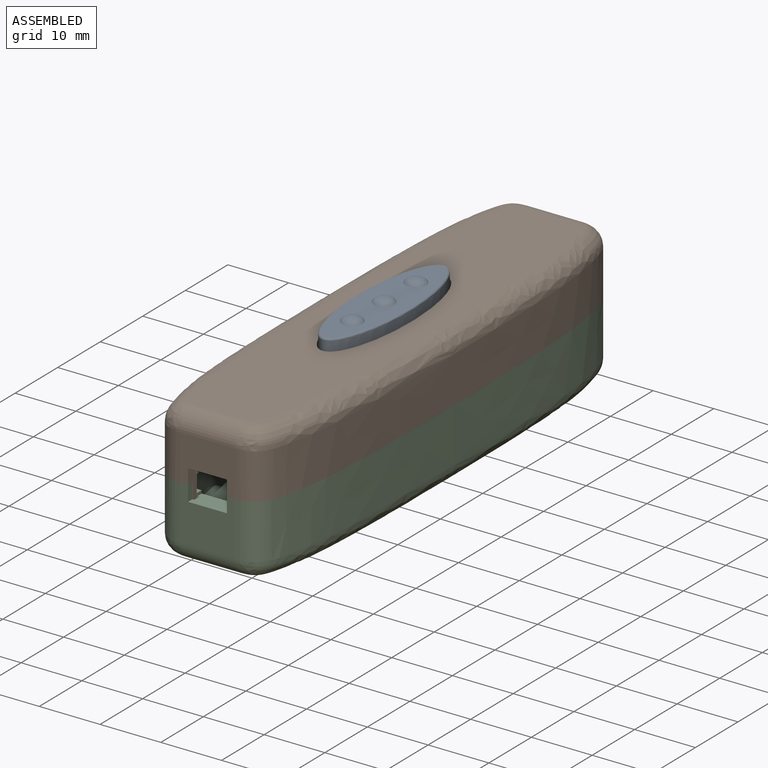
[diagram: assembled view]
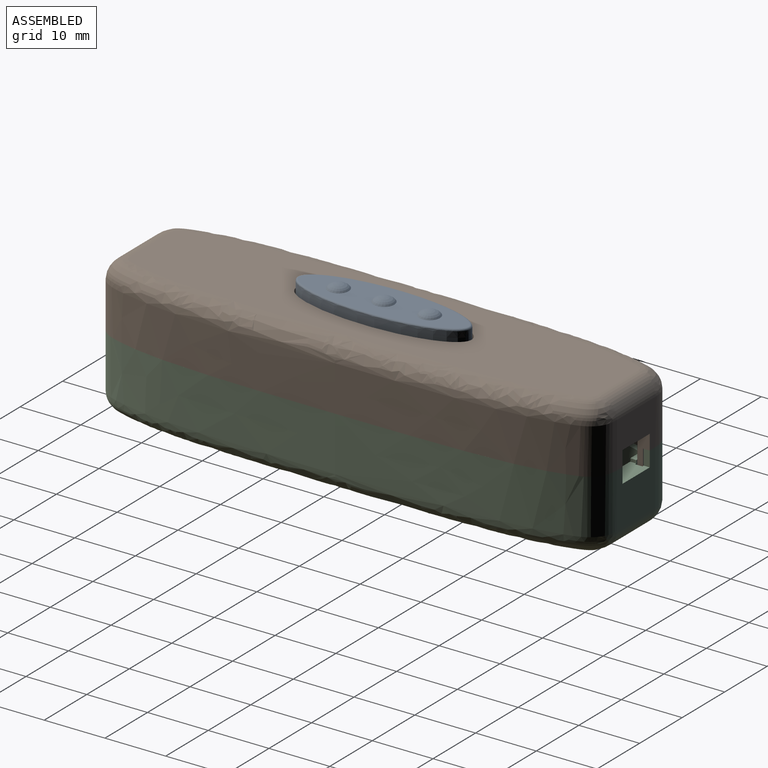
[diagram: assembled view, second angle]
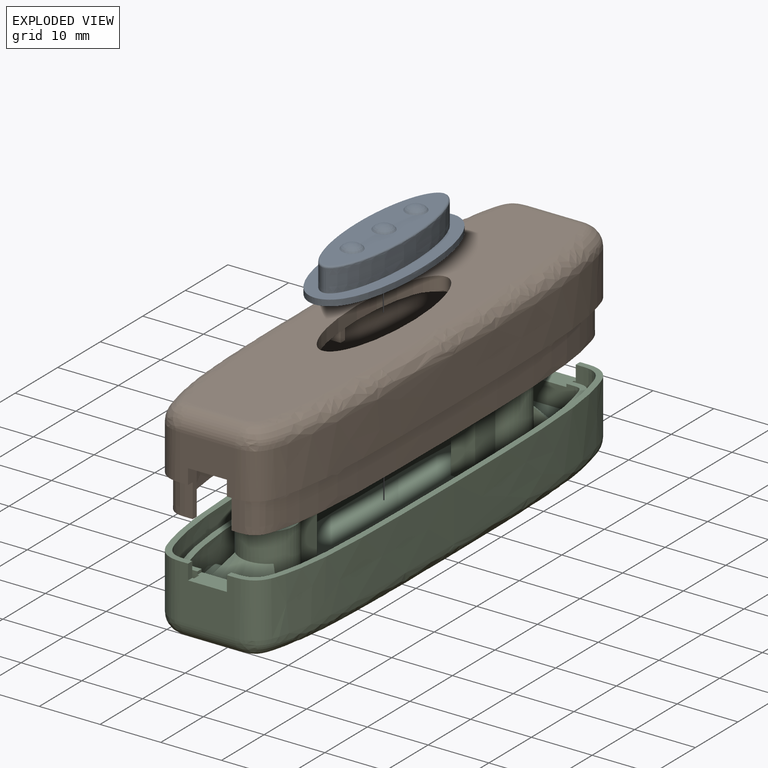
[diagram: exploded view]
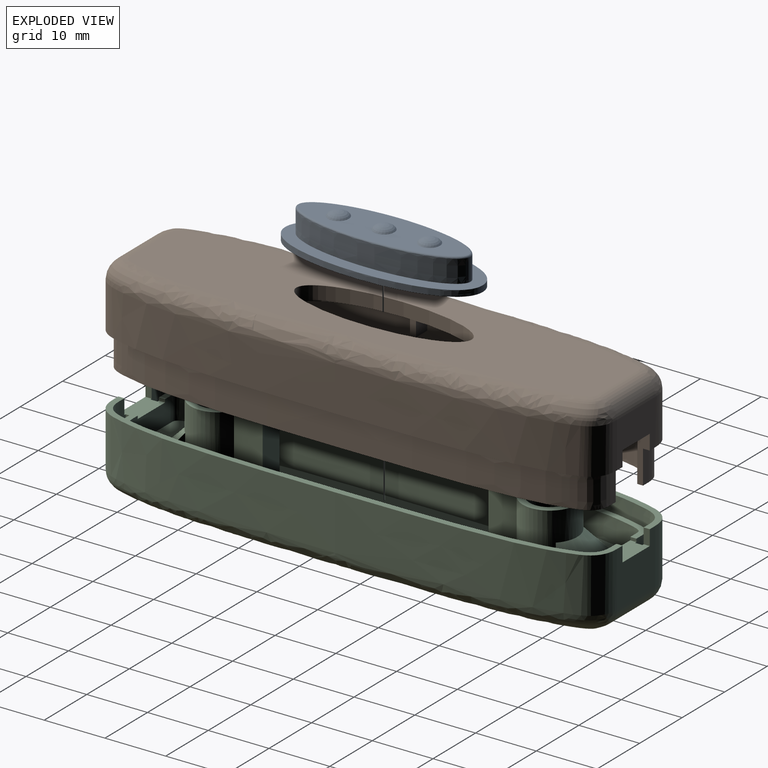
[diagram: exploded view, second angle]
ASSEMBLY  parts=3 mates=2
PART A: 18 faces, bbox 12.6x32.5x5.7 mm
  f0: plane 7.17x6.61mm, normal (0,0,-1), area 42.4mm2, adj f1,f2,f3,f12
  f1: extruded ~18.2x4mm, area 66mm2, adj f0,f2,f4,f7,f10,f11,f12,f13
  f2: plane 5.24x4mm, normal (0,1,0), area 20.9mm2, adj f0,f1,f3,f7
  f3: extruded ~18.2x4mm, area 66mm2, adj f0,f2,f4,f7,f10,f11,f12,f13
  f4: plane 5.24x4mm, normal (0,-1,0), area 20.9mm2, adj f1,f3,f7,f10
  f5: extruded ~32.5x12.6mm, area 74.7mm2, adj f6,f7
  f6: plane 32.52x12.62mm, normal (0,0,1), area 137.5mm2, adj f5,f8
  f7: plane 32.52x12.62mm, normal (0,0,-1), area 208.1mm2, adj f1,f2,f3,f4,f5
  f8: extruded ~28.5x8.6mm, area 230.9mm2, adj f6,f14
  f9: plane 27.9x8.01mm, normal (0,0,1), area 145.8mm2, adj f14,f15,f16,f17
  f10: plane 7.17x6.61mm, normal (0,0,-1), area 42.4mm2, adj f1,f3,f4,f11
  f11: plane 7.16x1.5mm, normal (0,1,0), area 10.7mm2, adj f1,f3,f10,f13
  f12: plane 7.16x1.5mm, normal (0,-1,0), area 10.7mm2, adj f0,f1,f3,f13
  f13: plane 7.3x5mm, normal (0,0,-1), area 36.3mm2, adj f1,f3,f11,f12
  f14: bspline ~28.5x8.61mm, area 29.1mm2, adj f8,f9
  f15: revolved ~3.4x3.4mm, area 11.1mm2, adj f9
  f16: revolved ~3.4x3.4mm, area 11.1mm2, adj f9
  f17: revolved ~3.4x3.4mm, area 11.1mm2, adj f9
PART B: 93 faces, bbox 23x83x16 mm
  f0: extruded ~39.45x12mm, area 485.8mm2, adj f6,f14,f16,f44,f47,f48,f70,f75
  f1: extruded ~39.45x12mm, area 485.8mm2, adj f8,f11,f12,f43,f45,f46,f60,f72
  f2: extruded ~28.9x9mm, area 140.2mm2, adj f3,f4
  f3: plane 35.92x16.01mm, normal (0,0,1), area 259.1mm2, adj f2,f5,f7,f9,f10,f11,f13,f14
  f4: plane 77x17mm, normal (0,0,-1), area 1025.1mm2, adj f2,f87,f88,f89,f90,f91,f92
  f5: extruded ~17.45x16mm, area 75.3mm2, adj f3,f6,f10,f14
  f6: plane 31.47x18.9mm, normal (0,0,1), area 249mm2, adj f0,f5,f10,f14,f26,f27,f28,f29
  f7: extruded ~17.45x16mm, area 75.3mm2, adj f3,f8,f11,f15
  f8: plane 31.47x18.9mm, normal (0,0,1), area 249mm2, adj f1,f7,f11,f15,f17,f18,f19,f20
  f9: plane 3.8x1mm, normal (1,0,0), area 3.8mm2, adj f3,f10,f11,f12
  f10: plane 3.8x2.65mm, normal (0,1,0), area 7.5mm2, adj f3,f5,f6,f9,f12,f43
  f11: plane 3.8x2.65mm, normal (0,-1,0), area 7.5mm2, adj f1,f3,f7,f8,f9,f12
  f12: plane 2.65x1mm, normal (0,0,1), area 2.6mm2, adj f1,f9,f10,f11,f43
  f13: plane 3.8x1mm, normal (-1,0,0), area 3.8mm2, adj f3,f14,f15,f16
  f14: plane 3.8x2.65mm, normal (0,1,0), area 7.5mm2, adj f0,f3,f5,f6,f13,f16
  f15: plane 3.8x2.65mm, normal (0,-1,0), area 7.5mm2, adj f3,f7,f8,f13,f16,f44
  f16: plane 2.65x1mm, normal (0,0,1), area 2.6mm2, adj f0,f13,f14,f15,f44
  f17: plane 10x2mm, normal (-1,0,0), area 20mm2, adj f8,f18,f25,f73
  f18: plane 2x1mm, normal (0,1,0), area 2mm2, adj f8,f17,f19,f25
  f19: plane 2x1mm, normal (1,0,0), area 2mm2, adj f8,f18,f20,f25
  f20: plane 4x2mm, normal (0,1,0), area 8mm2, adj f8,f19,f25,f37
  f21: plane 4x2mm, normal (0,1,0), area 8mm2, adj f8,f22,f25,f36
  f22: plane 2x1mm, normal (-1,0,0), area 2mm2, adj f8,f21,f23,f25
  f23: plane 2x1mm, normal (0,1,0), area 2mm2, adj f8,f22,f24,f25
  f24: plane 10x2mm, normal (1,0,0), area 20mm2, adj f8,f23,f25,f73
  f25: plane 11x10mm, normal (0,0,1), area 66.6mm2, adj f17,f18,f19,f20,f21,f22,f23,f24
  f26: plane 2x1mm, normal (0,-1,0), area 2mm2, adj f6,f27,f33,f34
  f27: plane 2x1mm, normal (-1,0,0), area 2mm2, adj f6,f26,f28,f34
  f28: plane 4x2mm, normal (0,-1,0), area 8mm2, adj f6,f27,f34,f40
  f29: plane 4x2mm, normal (0,-1,0), area 8mm2, adj f6,f30,f34,f41
  f30: plane 2x1mm, normal (1,0,0), area 2mm2, adj f6,f29,f31,f34
  f31: plane 2x1mm, normal (0,-1,0), area 2mm2, adj f6,f30,f32,f34
  f32: plane 10x2mm, normal (-1,0,0), area 20mm2, adj f6,f31,f34,f76
  f33: plane 10x2mm, normal (1,0,0), area 20mm2, adj f6,f26,f34,f76
  f34: plane 11x10mm, normal (0,0,1), area 66.6mm2, adj f26,f27,f28,f29,f30,f31,f32,f33
  f35: plane 4x1mm, normal (0,1,0), area 4mm2, adj f8,f36,f37,f38
  f36: plane 4x3.29mm, normal (1,0,0), area 10.6mm2, adj f8,f21,f25,f35,f38,f80
  f37: plane 4x3.29mm, normal (-1,0,0), area 10.6mm2, adj f8,f20,f25,f35,f38,f80
  f38: plane 3.29x1mm, normal (0,0,1), area 3.3mm2, adj f35,f36,f37,f80
  f39: plane 4x1mm, normal (0,-1,0), area 4mm2, adj f6,f40,f41,f42
  f40: plane 4x3.29mm, normal (1,0,0), area 10.6mm2, adj f6,f28,f34,f39,f42,f82
  f41: plane 4x3.29mm, normal (-1,0,0), area 10.6mm2, adj f6,f29,f34,f39,f42,f82
  f42: plane 3.29x1mm, normal (0,0,1), area 3.3mm2, adj f39,f40,f41,f82
  f43: extruded ~39.45x12mm, area 485.8mm2, adj f1,f6,f10,f12,f47,f48,f60,f75
  f44: extruded ~39.45x12mm, area 485.8mm2, adj f0,f8,f15,f16,f45,f46,f70,f72
  f45: plane 16.03x5.63mm, normal (0,0,1), area 81mm2, adj f1,f44,f46,f74
  f46: plane 12x9mm, normal (0,1,0), area 56.8mm2, adj f1,f44,f45,f54,f60,f63,f70,f78
  f47: plane 16.03x5.63mm, normal (0,0,1), area 81mm2, adj f0,f43,f48,f77
  f48: plane 12x9mm, normal (0,-1,0), area 56.8mm2, adj f0,f43,f47,f49,f60,f62,f70,f71
  f49: plane 8x2.05mm, normal (1,0,0), area 10.4mm2, adj f48,f50,f55,f56,f60,f71
  f50: plane 9x7.5mm, normal (0,1,0), area 51.5mm2, adj f49,f51,f55,f61,f62,f65,f71,f92
  f51: extruded ~41.5x7.5mm, area 333.4mm2, adj f50,f52,f55,f90
  f52: extruded ~41.5x7.5mm, area 333.4mm2, adj f51,f53,f55,f88
  f53: plane 9x7.5mm, normal (0,-1,0), area 51.5mm2, adj f52,f54,f55,f63,f64,f65,f78,f87
  f54: plane 8x2.05mm, normal (1,0,0), area 10.4mm2, adj f46,f53,f55,f57,f60,f78
  f55: plane 83x8.3mm, normal (0,0,1), area 98.7mm2, adj f49,f50,f51,f52,f53,f54,f56,f57
  f56: plane 5.5x1.3mm, normal (0,1,0), area 7.1mm2, adj f49,f55,f59,f60
  f57: plane 5.5x1.3mm, normal (0,-1,0), area 7.1mm2, adj f54,f55,f58,f60
  f58: extruded ~40.4x5.9mm, area 235mm2, adj f55,f57,f59,f60
  f59: extruded ~40.4x5.9mm, area 235mm2, adj f55,f56,f58,f60
  f60: plane 80.8x7.2mm, normal (0,0,1), area 82.2mm2, adj f1,f43,f46,f48,f49,f54,f56,f57
  f61: extruded ~41.5x7.5mm, area 333.4mm2, adj f50,f64,f65,f91
  f62: plane 8x2.05mm, normal (-1,0,0), area 10.4mm2, adj f48,f50,f65,f66,f70,f71
  f63: plane 8x2.05mm, normal (-1,0,0), area 10.4mm2, adj f46,f53,f65,f69,f70,f78
  f64: extruded ~41.5x7.5mm, area 333.4mm2, adj f53,f61,f65,f89
  f65: plane 83x8.3mm, normal (0,0,1), area 98.8mm2, adj f50,f53,f61,f62,f63,f64,f66,f67
  f66: plane 5.5x1.3mm, normal (0,1,0), area 7.1mm2, adj f62,f65,f67,f70
  f67: extruded ~40.4x5.9mm, area 235mm2, adj f65,f66,f68,f70
  f68: extruded ~40.4x5.9mm, area 235mm2, adj f65,f67,f69,f70
  f69: plane 5.5x1.3mm, normal (0,-1,0), area 7.1mm2, adj f63,f65,f68,f70
  f70: plane 80.8x7.2mm, normal (0,0,1), area 82.2mm2, adj f0,f44,f46,f48,f62,f63,f66,f67
  f71: plane 6.4x2.05mm, normal (0,0,1), area 13.1mm2, adj f48,f49,f50,f62
  f72: plane 16.74x2mm, normal (0,0,1), area 32.8mm2, adj f1,f44,f73,f74
  f73: plane 16.73x4mm, normal (0,1,0), area 44.9mm2, adj f1,f8,f17,f24,f25,f44,f72
  f74: plane 16.02x4mm, normal (0,-1,0), area 64.1mm2, adj f1,f44,f45,f72
  f75: plane 16.74x2mm, normal (0,0,1), area 32.8mm2, adj f0,f43,f76,f77
  f76: plane 16.73x4mm, normal (0,-1,0), area 44.9mm2, adj f0,f6,f32,f33,f34,f43,f75
  f77: plane 16.02x4mm, normal (0,1,0), area 64.1mm2, adj f0,f43,f47,f75
  f78: plane 6.4x2.05mm, normal (0,0,1), area 13.1mm2, adj f46,f53,f54,f63
  f79: cylinder r=1.72mm len=9mm, axis (0,0,-1), area 97.5mm2, adj f81,f85
  f80: cylinder r=3.25mm len=6.5mm, axis (0,0,-1), area 130.7mm2, adj f25,f36,f37,f38,f81
  f81: plane 6.5x6.5mm, normal (0,0,1), area 23.8mm2, adj f79,f80
  f82: cylinder r=3.25mm len=6.5mm, axis (0,0,-1), area 130.7mm2, adj f34,f40,f41,f42,f84
  f83: cylinder r=1.72mm len=9mm, axis (0,0,-1), area 97.5mm2, adj f84,f86
  f84: plane 6.5x6.5mm, normal (0,0,1), area 23.8mm2, adj f82,f83
  f85: plane 3.45x3.45mm, normal (0,0,1), area 9.3mm2, adj f79
  f86: plane 3.45x3.45mm, normal (0,0,1), area 9.3mm2, adj f83
  f87: cylinder r=3mm len=9mm, axis (1,0,0), area 42.4mm2, adj f4,f53,f88,f89
  f88: bspline ~66.92x13.21mm, area 201.4mm2, adj f4,f52,f87,f90
  f89: bspline ~66.92x13.21mm, area 201.3mm2, adj f4,f64,f87,f91
  f90: bspline ~66.92x13.21mm, area 201.3mm2, adj f4,f51,f88,f92
  f91: bspline ~66.92x13.21mm, area 201.4mm2, adj f4,f61,f89,f92
  f92: cylinder r=3mm len=9mm, axis (-1,0,0), area 42.4mm2, adj f4,f50,f90,f91
PART C: 92 faces, bbox 23x83x14.3 mm
  f0: plane 15.07x8.98mm, normal (0,0,1), area 72.1mm2, adj f5,f24,f25,f59,f78,f79,f89,f90
  f1: plane 15.07x8.98mm, normal (0,0,1), area 72.1mm2, adj f3,f4,f23,f44,f76,f77,f86,f87
  f2: plane 77x17mm, normal (0,0,-1), area 1152.4mm2, adj f72,f74,f80,f81,f82,f83,f84,f85
  f3: cylinder r=4.5mm len=11.8mm, axis (0,0,-1), area 212.2mm2, adj f1,f52,f53,f56,f67,f68,f69,f76
  f4: extruded ~38.3x7.5mm, area 254.4mm2, adj f1,f23,f24,f27,f67,f68,f76
  f5: extruded ~38.3x7.5mm, area 254.4mm2, adj f0,f25,f44,f47,f67,f71,f78
  f6: plane 9x9mm, normal (0,1,0), area 65mm2, adj f7,f15,f16,f30,f31,f38,f49,f83
  f7: extruded ~41.5x9mm, area 400.1mm2, adj f6,f8,f16,f81
  f8: extruded ~41.5x9mm, area 400.1mm2, adj f7,f9,f16,f80
  f9: plane 9x9mm, normal (0,-1,0), area 65mm2, adj f8,f10,f16,f36,f37,f38,f51,f82
  f10: plane 2.5x1mm, normal (1,0,0), area 2.5mm2, adj f9,f11,f16,f51
  f11: plane 6x1.6mm, normal (0,1,0), area 8.8mm2, adj f10,f12,f16,f17,f28,f51
  f12: extruded ~40.5x6mm, area 257.3mm2, adj f11,f13,f16,f17
  f13: extruded ~40.5x6mm, area 257.3mm2, adj f12,f14,f16,f17
  f14: plane 6x1.6mm, normal (0,-1,0), area 8.8mm2, adj f13,f15,f16,f17,f29,f49
  f15: plane 2.5x1mm, normal (1,0,0), area 2.5mm2, adj f6,f14,f16,f49
  f16: plane 83x8.3mm, normal (0,0,1), area 89.9mm2, adj f6,f7,f8,f9,f10,f11,f12,f13
  f17: plane 81x7.6mm, normal (0,0,1), area 104.5mm2, adj f11,f12,f13,f14,f18,f19,f20,f21
  f18: plane 4x1.6mm, normal (0,-1,0), area 6.3mm2, adj f17,f20,f22,f27,f28,f51
  f19: plane 4x1.6mm, normal (0,1,0), area 6.2mm2, adj f17,f21,f26,f27,f29,f49
  f20: extruded ~39.3x4.8mm, area 164mm2, adj f17,f18,f21,f27
  f21: extruded ~39.3x4.8mm, area 164mm2, adj f17,f19,f20,f27
  f22: plane 1x0.5mm, normal (1,0,0), area 0.5mm2, adj f18,f23,f27,f51
  f23: plane 9x4mm, normal (0,1,0), area 32.8mm2, adj f1,f4,f22,f27,f44,f45,f47,f51
  f24: extruded ~38.3x7.5mm, area 254.4mm2, adj f0,f4,f25,f27,f67,f70,f79
  f25: plane 9x4mm, normal (0,-1,0), area 32.8mm2, adj f0,f5,f24,f26,f27,f46,f47,f49
  f26: plane 1x0.5mm, normal (1,0,0), area 0.5mm2, adj f19,f25,f27,f49
  f27: plane 78.6x6.1mm, normal (0,0,1), area 83mm2, adj f4,f18,f19,f20,f21,f22,f23,f24
  f28: plane 3.5x1.2mm, normal (-1,0,0), area 4.2mm2, adj f11,f17,f18,f51
  f29: plane 3.5x1.2mm, normal (-1,0,0), area 4.2mm2, adj f14,f17,f19,f49
  f30: extruded ~41.5x9mm, area 400.1mm2, adj f6,f37,f38,f85
  f31: plane 2.5x1mm, normal (-1,0,0), area 2.5mm2, adj f6,f32,f38,f49
  f32: plane 6x1.6mm, normal (0,-1,0), area 8.9mm2, adj f31,f33,f38,f39,f48,f49
  f33: extruded ~40.5x6mm, area 257.3mm2, adj f32,f34,f38,f39
  f34: extruded ~40.5x6mm, area 257.3mm2, adj f33,f35,f38,f39
  f35: plane 6x1.6mm, normal (0,1,0), area 8.8mm2, adj f34,f36,f38,f39,f50,f51
  f36: plane 2.5x1mm, normal (-1,0,0), area 2.5mm2, adj f9,f35,f38,f51
  f37: extruded ~41.5x9mm, area 400.1mm2, adj f9,f30,f38,f84
  f38: plane 83x8.3mm, normal (0,0,1), area 90mm2, adj f6,f9,f30,f31,f32,f33,f34,f35
  f39: plane 81x7.6mm, normal (0,0,1), area 104.5mm2, adj f32,f33,f34,f35,f40,f41,f42,f43
  f40: plane 4x1.6mm, normal (0,-1,0), area 6.2mm2, adj f39,f42,f45,f47,f50,f51
  f41: plane 4x1.6mm, normal (0,1,0), area 6.3mm2, adj f39,f43,f46,f47,f48,f49
  f42: extruded ~39.3x4.8mm, area 164mm2, adj f39,f40,f43,f47
  f43: extruded ~39.3x4.8mm, area 164mm2, adj f39,f41,f42,f47
  f44: extruded ~38.3x7.5mm, area 254.4mm2, adj f1,f5,f23,f47,f67,f69,f77
  f45: plane 1x0.5mm, normal (-1,0,0), area 0.5mm2, adj f23,f40,f47,f51
  f46: plane 1x0.5mm, normal (-1,0,0), area 0.5mm2, adj f25,f41,f47,f49
  f47: plane 78.6x6.1mm, normal (0,0,1), area 83mm2, adj f5,f23,f25,f40,f41,f42,f43,f44
  f48: plane 3.5x1.2mm, normal (1,0,0), area 4.2mm2, adj f32,f39,f41,f49
  f49: plane 6.4x3.2mm, normal (0,0,1), area 19.8mm2, adj f6,f14,f15,f19,f25,f26,f29,f31
  f50: plane 3.5x1.2mm, normal (1,0,0), area 4.2mm2, adj f35,f39,f40,f51
  f51: plane 6.4x3.2mm, normal (0,0,1), area 19.8mm2, adj f9,f10,f11,f18,f22,f23,f28,f35
  f52: plane 11.8x4.72mm, normal (-1,0,0), area 55.7mm2, adj f3,f54,f56,f67
  f53: plane 11.8x4.72mm, normal (1,0,0), area 55.7mm2, adj f3,f54,f56,f67
  f54: plane 11.8x4mm, normal (0,1,0), area 47.2mm2, adj f52,f53,f56,f67
  f55: cylinder r=3.4mm len=6.8mm, axis (0,0,-1), area 96.1mm2, adj f56,f58
  f56: plane 13.25x9mm, normal (0,0,1), area 44.9mm2, adj f3,f52,f53,f54,f55
  f57: cylinder r=1.9mm len=4.8mm, axis (0,0,-1), area 57.3mm2, adj f58,f75
  f58: plane 6.8x6.8mm, normal (0,0,1), area 25mm2, adj f55,f57
  f59: cylinder r=4.5mm len=11.8mm, axis (0,0,-1), area 212.2mm2, adj f0,f60,f62,f64,f67,f70,f71,f78
  f60: plane 11.8x4.72mm, normal (-1,0,0), area 55.7mm2, adj f59,f61,f64,f67
  f61: plane 11.8x4mm, normal (0,-1,0), area 47.2mm2, adj f60,f62,f64,f67
  f62: plane 11.8x4.72mm, normal (1,0,0), area 55.7mm2, adj f59,f61,f64,f67
  f63: cylinder r=3.4mm len=6.8mm, axis (0,0,-1), area 96.1mm2, adj f64,f66
  f64: plane 13.25x9mm, normal (0,0,1), area 44.9mm2, adj f59,f60,f61,f62,f63
  f65: cylinder r=1.9mm len=4.8mm, axis (0,0,-1), area 57.3mm2, adj f66,f73
  f66: plane 6.8x6.8mm, normal (0,0,1), area 25mm2, adj f63,f65
  f67: plane 54.81x16.6mm, normal (0,0,1), area 792.5mm2, adj f3,f4,f5,f24,f44,f52,f53,f54
  f68: plane 3.21x1.5mm, normal (0,1,0), area 4.8mm2, adj f3,f4,f67,f76
  f69: plane 3.21x1.5mm, normal (0,1,0), area 4.8mm2, adj f3,f44,f67,f77
  f70: plane 3.21x1.5mm, normal (0,-1,0), area 4.8mm2, adj f24,f59,f67,f79
  f71: plane 3.21x1.5mm, normal (0,-1,0), area 4.8mm2, adj f5,f59,f67,f78
  f72: cylinder r=3.5mm len=7mm, axis (0,0,-1), area 110mm2, adj f2,f73
  f73: plane 7x7mm, normal (0,0,-1), area 27.1mm2, adj f65,f72
  f74: cylinder r=3.5mm len=7mm, axis (0,0,-1), area 110mm2, adj f2,f75
  f75: plane 7x7mm, normal (0,0,-1), area 27.1mm2, adj f57,f74
  f76: cylinder r=2mm len=3.68mm, axis (1,0,0), area 10.5mm2, adj f1,f3,f4,f68
  f77: cylinder r=2mm len=3.68mm, axis (1,0,0), area 10.5mm2, adj f1,f3,f44,f69
  f78: cylinder r=2mm len=3.68mm, axis (-1,0,0), area 10.5mm2, adj f0,f5,f59,f71
  f79: cylinder r=2mm len=3.68mm, axis (-1,0,0), area 10.5mm2, adj f0,f24,f59,f70
  f80: bspline ~66.92x13.21mm, area 201.4mm2, adj f2,f8,f81,f82
  f81: bspline ~66.92x13.21mm, area 201.3mm2, adj f2,f7,f80,f83
  f82: cylinder r=3mm len=9mm, axis (1,0,0), area 42.4mm2, adj f2,f9,f80,f84
  f83: cylinder r=3mm len=9mm, axis (-1,0,0), area 42.4mm2, adj f2,f6,f81,f85
  f84: bspline ~66.92x13.21mm, area 201.3mm2, adj f2,f37,f82,f85
  f85: bspline ~66.92x13.21mm, area 201.4mm2, adj f2,f30,f83,f84
  f86: cone r=4.5mm half-angle=45deg, axis (0,0,-1), area 48.6mm2, adj f1,f3,f87,f88
  f87: plane 3.5x2.48mm, normal (-0.71,0.71,0), area 6.1mm2, adj f1,f3,f86
  f88: plane 3.5x2.48mm, normal (0.71,0.71,0), area 6.1mm2, adj f1,f3,f86
  f89: cone r=4.5mm half-angle=45deg, axis (0,0,-1), area 48.6mm2, adj f0,f59,f90,f91
  f90: plane 3.5x2.48mm, normal (0.71,-0.71,0), area 6.1mm2, adj f0,f59,f89
  f91: plane 3.5x2.48mm, normal (-0.71,-0.71,0), area 6.1mm2, adj f0,f59,f89
PLACE A t=(-10.08,-3.13,17.33)mm
PLACE B rot(axis=(0,1,0),180deg) t=(-10.08,-3.13,20.53)mm
PLACE C t=(-10.08,-3.13,-1.97)mm fixed
MATE fastened B.f65 <-> C.f16  axis (0,0,-1) through (-21.58,-3.13,10.03)mm
MATE fastened A.f6 <-> B.f3  axis (0,0,1) through (-10.08,-3.13,18.33)mm
